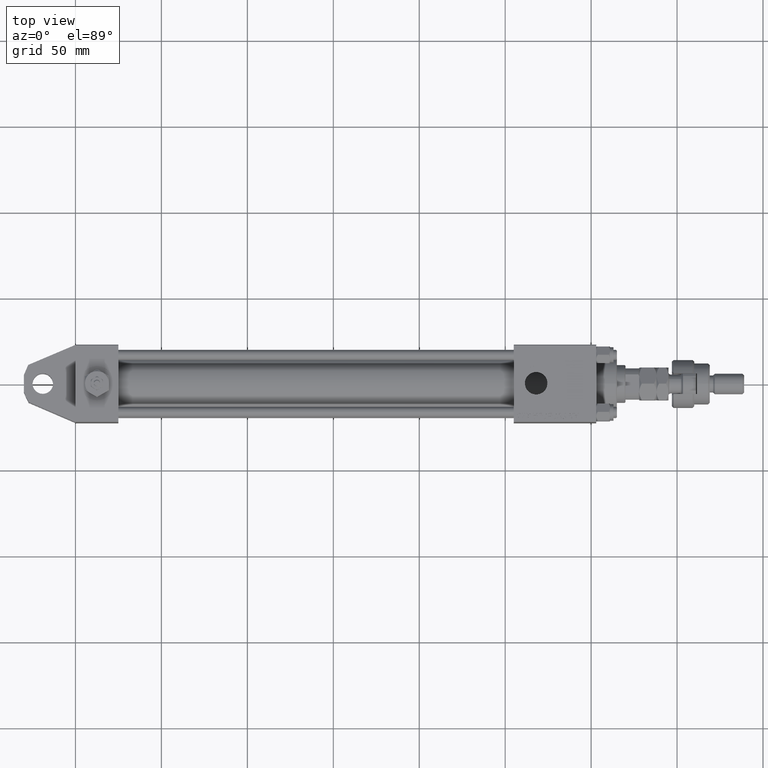
[diagram: clean part render]
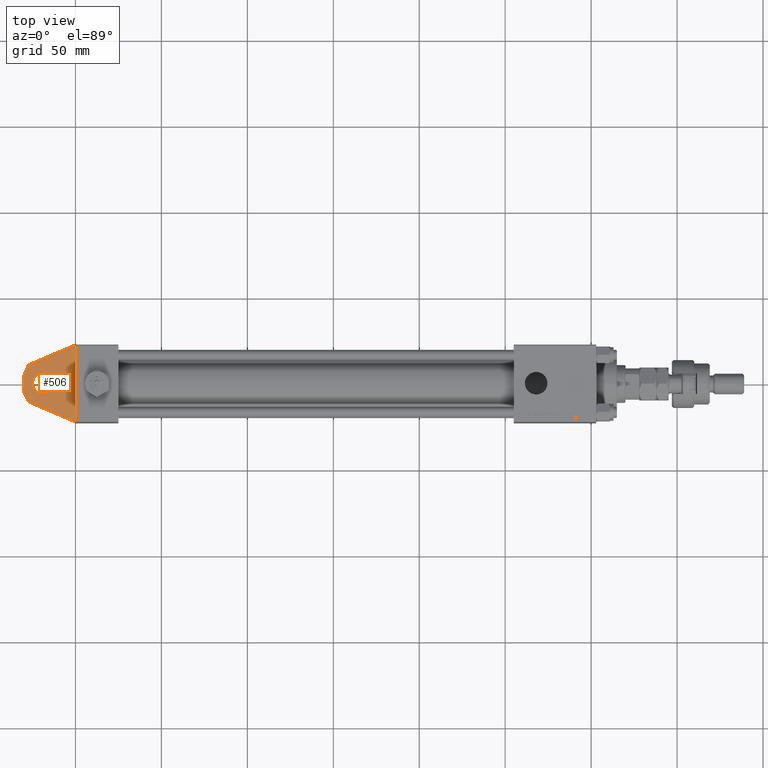
[diagram: same view with one face highlighted and labeled with its STEP entity id]
A machine part, top view. The second image highlights one B-rep face of the part: STEP entity #506.
In plain terms, the highlighted planar face has unit normal (0, 0, 1).
Its self-contained STEP definition (entity closure, byte-faithful):
#506 = ADVANCED_FACE ( 'NONE', ( #26636, #47860 ), #18090, .T. ) ;
#1159 = CARTESIAN_POINT ( 'NONE',  ( 0.000000000000000000, -15.99999999999999289, 22.50000000000000000 ) ) ;
#1355 = CARTESIAN_POINT ( 'NONE',  ( -30.00000000000000000, -16.00000000000000000, -5.000000000000003553 ) ) ;
#1769 = DIRECTION ( 'NONE',  ( 0.000000000000000000, 0.000000000000000000, -1.000000000000000000 ) ) ;
#2311 = LINE ( 'NONE', #27425, #51071 ) ;
#2835 = ORIENTED_EDGE ( 'NONE', *, *, #37349, .F. ) ;
#4992 = ORIENTED_EDGE ( 'NONE', *, *, #17008, .T. ) ;
#6210 = DIRECTION ( 'NONE',  ( 0.000000000000000000, -1.000000000000000000, 0.000000000000000000 ) ) ;
#6658 = ORIENTED_EDGE ( 'NONE', *, *, #8282, .F. ) ;
#6926 = LINE ( 'NONE', #31760, #9434 ) ;
#7974 = VERTEX_POINT ( 'NONE', #1159 ) ;
#8282 = EDGE_CURVE ( 'NONE', #20646, #53968, #49795, .T. ) ;
#9434 = VECTOR ( 'NONE', #15202, 1000.000000000000227 ) ;
#10347 = DIRECTION ( 'NONE',  ( 0.000000000000000000, 0.000000000000000000, 1.000000000000000000 ) ) ;
#10726 = EDGE_LOOP ( 'NONE', ( #4992, #42750 ) ) ;
#13131 = EDGE_LOOP ( 'NONE', ( #6658, #2835, #26754, #44927, #40862, #14492 ) ) ;
#14492 = ORIENTED_EDGE ( 'NONE', *, *, #14960, .F. ) ;
#14960 = EDGE_CURVE ( 'NONE', #53968, #7974, #50072, .T. ) ;
#15202 = DIRECTION ( 'NONE',  ( -0.9186825547302631678, 0.000000000000000000, 0.3949966628141013958 ) ) ;
#16034 = AXIS2_PLACEMENT_3D ( 'NONE', #26913, #6210, #17820 ) ;
#16314 = CARTESIAN_POINT ( 'NONE',  ( -30.00000000000000000, -16.00000000000000000, -5.000000000000003553 ) ) ;
#16452 = VECTOR ( 'NONE', #54197, 999.9999999999998863 ) ;
#16655 = VERTEX_POINT ( 'NONE', #42226 ) ;
#17008 = EDGE_CURVE ( 'NONE', #16655, #40521, #26967, .T. ) ;
#17820 = DIRECTION ( 'NONE',  ( 0.000000000000000000, 0.000000000000000000, 1.000000000000000000 ) ) ;
#18090 = PLANE ( 'NONE',  #16034 ) ;
#19004 = DIRECTION ( 'NONE',  ( -0.000000000000000000, 1.000000000000000000, -0.000000000000000000 ) ) ;
#19267 = EDGE_CURVE ( 'NONE', #19801, #31585, #6926, .T. ) ;
#19801 = VERTEX_POINT ( 'NONE', #22175 ) ;
#20178 = LINE ( 'NONE', #16314, #33259 ) ;
#20430 = CARTESIAN_POINT ( 'NONE',  ( -27.31637403794659136, -16.00000000000000000, -10.75505444768274543 ) ) ;
#20646 = VERTEX_POINT ( 'NONE', #49900 ) ;
#21678 = VERTEX_POINT ( 'NONE', #1355 ) ;
#22175 = CARTESIAN_POINT ( 'NONE',  ( 0.000000000000000000, -16.00000000000000000, -22.50000000000000711 ) ) ;
#23118 = DIRECTION ( 'NONE',  ( -0.4226182617406942232, 0.000000000000000000, 0.9063077870366523792 ) ) ;
#24437 = CARTESIAN_POINT ( 'NONE',  ( -30.00000000000000000, -16.00000000000000000, 4.999999999999996447 ) ) ;
#24462 = CARTESIAN_POINT ( 'NONE',  ( -27.49177119113045720, -16.00000000000000000, 10.83363422253716735 ) ) ;
#25199 = EDGE_CURVE ( 'NONE', #7974, #19801, #2311, .T. ) ;
#25230 = AXIS2_PLACEMENT_3D ( 'NONE', #26905, #48115, #10347 ) ;
#26636 = FACE_BOUND ( 'NONE', #10726, .T. ) ;
#26754 = ORIENTED_EDGE ( 'NONE', *, *, #33010, .F. ) ;
#26905 = CARTESIAN_POINT ( 'NONE',  ( -19.00000000000000000, -16.00000000000000000, -3.469446951953614189E-15 ) ) ;
#26913 = CARTESIAN_POINT ( 'NONE',  ( 0.000000000000000000, -16.00000000000000000, 0.000000000000000000 ) ) ;
#26967 = CIRCLE ( 'NONE', #25230, 6.000000000000000888 ) ;
#27425 = CARTESIAN_POINT ( 'NONE',  ( 0.000000000000000000, -16.00000000000000000, 22.50000000000000000 ) ) ;
#29405 = CARTESIAN_POINT ( 'NONE',  ( -27.49177119113045720, -16.00000000000000000, 10.83363422253716735 ) ) ;
#31585 = VERTEX_POINT ( 'NONE', #20430 ) ;
#31760 = CARTESIAN_POINT ( 'NONE',  ( -27.31637403794659136, -16.00000000000000000, -10.75505444768274543 ) ) ;
#33010 = EDGE_CURVE ( 'NONE', #31585, #21678, #36375, .T. ) ;
#33259 = VECTOR ( 'NONE', #50471, 1000.000000000000000 ) ;
#34062 = EDGE_CURVE ( 'NONE', #40521, #16655, #49832, .T. ) ;
#35840 = DIRECTION ( 'NONE',  ( 0.000000000000000000, 0.000000000000000000, 1.000000000000000000 ) ) ;
#36375 = LINE ( 'NONE', #53172, #43624 ) ;
#36869 = DIRECTION ( 'NONE',  ( 0.3949966628141011737, 0.000000000000000000, 0.9186825547302632788 ) ) ;
#37349 = EDGE_CURVE ( 'NONE', #21678, #20646, #20178, .T. ) ;
#40521 = VERTEX_POINT ( 'NONE', #40894 ) ;
#40862 = ORIENTED_EDGE ( 'NONE', *, *, #25199, .F. ) ;
#40894 = CARTESIAN_POINT ( 'NONE',  ( -19.00000000000000000, -16.00000000000000000, -6.000000000000004441 ) ) ;
#41030 = AXIS2_PLACEMENT_3D ( 'NONE', #52082, #19004, #35840 ) ;
#42226 = CARTESIAN_POINT ( 'NONE',  ( -19.00000000000000000, -16.00000000000000000, 5.999999999999997335 ) ) ;
#42750 = ORIENTED_EDGE ( 'NONE', *, *, #34062, .T. ) ;
#43624 = VECTOR ( 'NONE', #23118, 1000.000000000000000 ) ;
#44927 = ORIENTED_EDGE ( 'NONE', *, *, #19267, .F. ) ;
#47034 = VECTOR ( 'NONE', #36869, 1000.000000000000000 ) ;
#47860 = FACE_OUTER_BOUND ( 'NONE', #13131, .T. ) ;
#48115 = DIRECTION ( 'NONE',  ( -0.000000000000000000, 1.000000000000000000, -0.000000000000000000 ) ) ;
#49795 = LINE ( 'NONE', #24437, #47034 ) ;
#49832 = CIRCLE ( 'NONE', #41030, 6.000000000000000888 ) ;
#49900 = CARTESIAN_POINT ( 'NONE',  ( -30.00000000000000000, -16.00000000000000000, 4.999999999999996447 ) ) ;
#50072 = LINE ( 'NONE', #29405, #16452 ) ;
#50471 = DIRECTION ( 'NONE',  ( 0.000000000000000000, 0.000000000000000000, 1.000000000000000000 ) ) ;
#51071 = VECTOR ( 'NONE', #1769, 1000.000000000000000 ) ;
#52082 = CARTESIAN_POINT ( 'NONE',  ( -19.00000000000000000, -16.00000000000000000, -3.469446951953614189E-15 ) ) ;
#53172 = CARTESIAN_POINT ( 'NONE',  ( -30.00000000000000000, -16.00000000000000000, -5.000000000000003553 ) ) ;
#53968 = VERTEX_POINT ( 'NONE', #24462 ) ;
#54197 = DIRECTION ( 'NONE',  ( 0.9205433724492674274, 0.000000000000000000, 0.3906403709804319724 ) ) ;